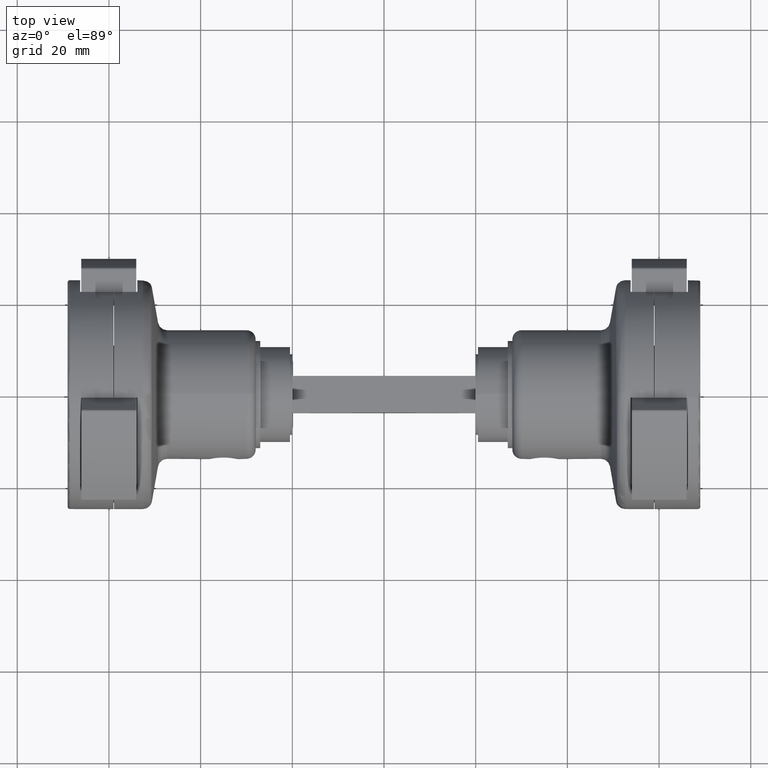
[diagram: clean part render]
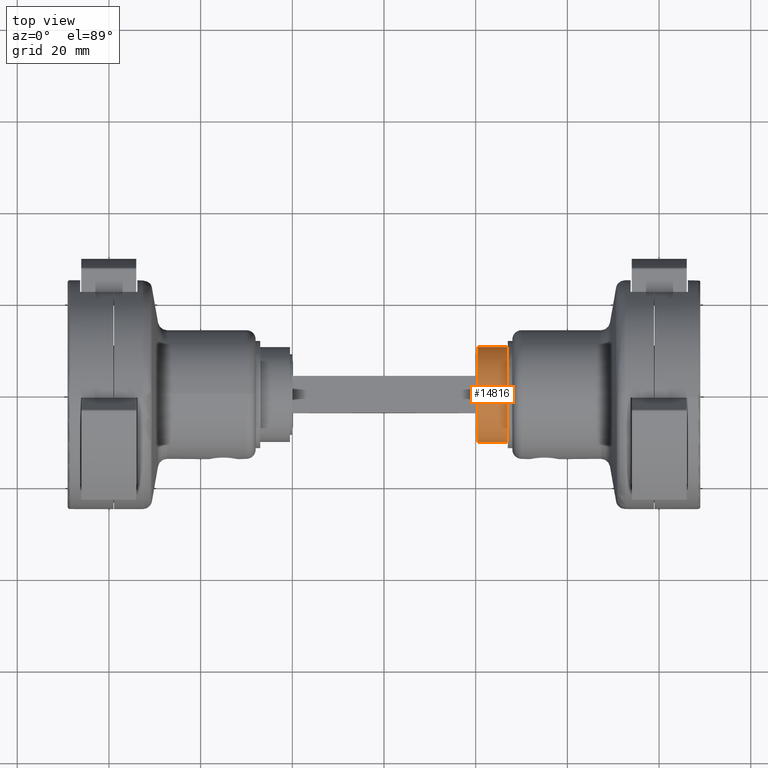
[diagram: same view with one face highlighted and labeled with its STEP entity id]
A machine part, top view. The second image highlights one B-rep face of the part: STEP entity #14816.
In plain terms, the highlighted cylindrical surface (bore or boss wall) has radius 10.4 mm, axis along (-1, -0, -0).
Its self-contained STEP definition (entity closure, byte-faithful):
#124 = EDGE_CURVE ( 'NONE', #2342, #2342, #6236, .T. ) ;
#463 = CARTESIAN_POINT ( 'NONE',  ( 0.000000000000000000, -1.540743955509788682E-30, -3.750000000000000000 ) ) ;
#682 = DIRECTION ( 'NONE',  ( 0.000000000000000000, 8.795274085471492454E-33, -1.000000000000000000 ) ) ;
#989 = FACE_OUTER_BOUND ( 'NONE', #14124, .T. ) ;
#1625 = DIRECTION ( 'NONE',  ( -1.000000000000000000, 0.000000000000000000, 0.000000000000000000 ) ) ;
#1719 = CARTESIAN_POINT ( 'NONE',  ( -1.078520768856852078E-29, 0.000000000000000000, 2.749999999999999112 ) ) ;
#2342 = VERTEX_POINT ( 'NONE', #2445 ) ;
#2445 = CARTESIAN_POINT ( 'NONE',  ( -10.40000000000000036, -1.540743955509788682E-30, -3.750000000000000000 ) ) ;
#3384 = EDGE_LOOP ( 'NONE', ( #15764 ) ) ;
#4274 = VERTEX_POINT ( 'NONE', #13664 ) ;
#5020 = EDGE_CURVE ( 'NONE', #4274, #4274, #5567, .T. ) ;
#5567 = CIRCLE ( 'NONE', #13648, 10.40000000000000036 ) ;
#6236 = CIRCLE ( 'NONE', #10198, 10.40000000000000036 ) ;
#7361 = FACE_OUTER_BOUND ( 'NONE', #3384, .T. ) ;
#7766 = AXIS2_PLACEMENT_3D ( 'NONE', #463, #11514, #1625 ) ;
#9115 = DIRECTION ( 'NONE',  ( -1.000000000000000000, 0.000000000000000000, 0.000000000000000000 ) ) ;
#10143 = DIRECTION ( 'NONE',  ( 0.000000000000000000, 8.795274085471492454E-33, -1.000000000000000000 ) ) ;
#10198 = AXIS2_PLACEMENT_3D ( 'NONE', #15152, #10143, #9115 ) ;
#11514 = DIRECTION ( 'NONE',  ( 0.000000000000000000, 8.795274085471492454E-33, -1.000000000000000000 ) ) ;
#12743 = DIRECTION ( 'NONE',  ( -1.000000000000000000, 0.000000000000000000, 0.000000000000000000 ) ) ;
#13648 = AXIS2_PLACEMENT_3D ( 'NONE', #1719, #682, #12743 ) ;
#13664 = CARTESIAN_POINT ( 'NONE',  ( -10.40000000000000036, 0.000000000000000000, 2.749999999999999112 ) ) ;
#14124 = EDGE_LOOP ( 'NONE', ( #15734 ) ) ;
#14482 = CYLINDRICAL_SURFACE ( 'NONE', #7766, 10.40000000000000036 ) ;
#14816 = ADVANCED_FACE ( 'NONE', ( #989, #7361 ), #14482, .T. ) ;
#15152 = CARTESIAN_POINT ( 'NONE',  ( 0.000000000000000000, -1.540743955509788682E-30, -3.750000000000000000 ) ) ;
#15734 = ORIENTED_EDGE ( 'NONE', *, *, #124, .F. ) ;
#15764 = ORIENTED_EDGE ( 'NONE', *, *, #5020, .T. ) ;